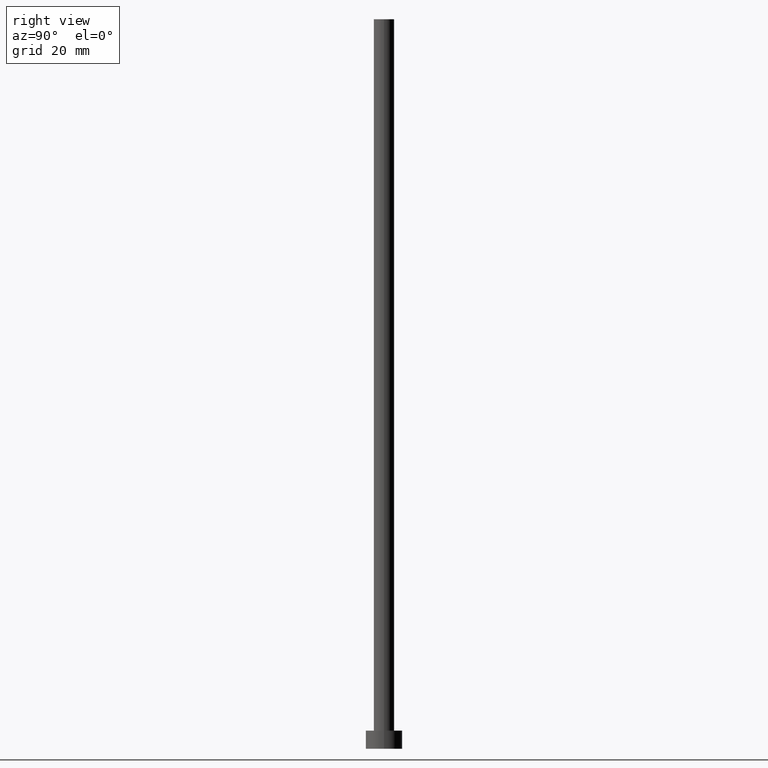
[diagram: clean part render]
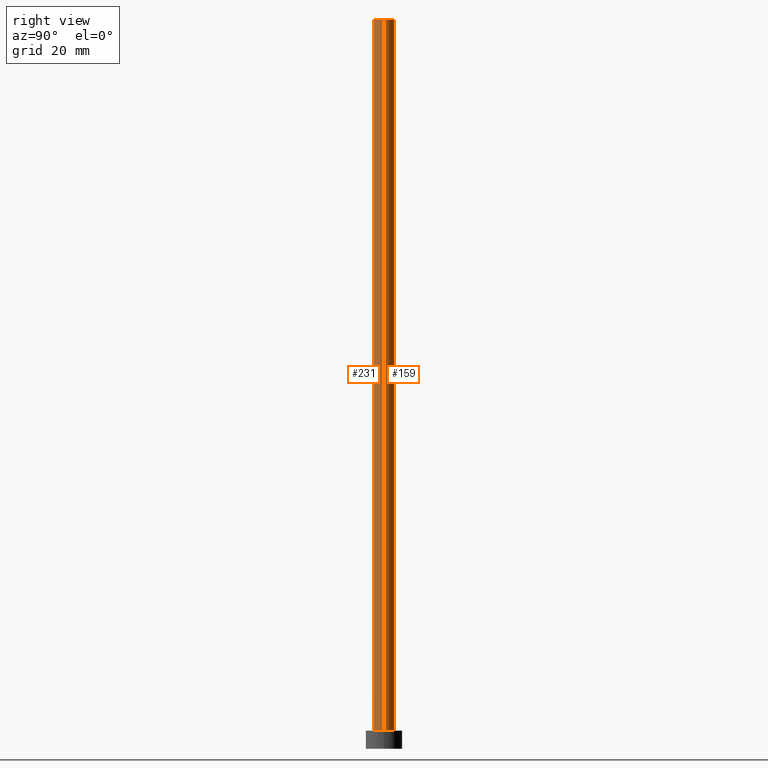
[diagram: same view with one multi-face feature highlighted, each face labeled with its STEP entity id]
A machine part, right view. The highlighted faces form ONE feature: a constant-radius fillet chain: 2 tangent blend faces with common blend radius 2.25 mm. The faces share edges in the B-rep.
Their STEP definitions:
[1] entity #159 (Cylinder):
#1 = CARTESIAN_POINT ( 'NONE',  ( 2.250000000000000000, 2.755455298081544285E-16, 160.0000000000000000 ) ) ;
#2 = VECTOR ( 'NONE', #218, 1000.000000000000000 ) ;
#4 = VERTEX_POINT ( 'NONE', #1 ) ;
#6 = ORIENTED_EDGE ( 'NONE', *, *, #172, .F. ) ;
#7 = DIRECTION ( 'NONE',  ( 0.000000000000000000, 0.000000000000000000, 1.000000000000000000 ) ) ;
#11 = VECTOR ( 'NONE', #240, 1000.000000000000000 ) ;
#24 = EDGE_CURVE ( 'NONE', #4, #242, #166, .T. ) ;
#25 = VERTEX_POINT ( 'NONE', #59 ) ;
#33 = LINE ( 'NONE', #216, #2 ) ;
#37 = CARTESIAN_POINT ( 'NONE',  ( 0.000000000000000000, 0.000000000000000000, 4.000000000000000000 ) ) ;
#42 = CARTESIAN_POINT ( 'NONE',  ( 2.250000000000000000, 2.755455298081544285E-16, 160.0000000000000000 ) ) ;
#44 = ORIENTED_EDGE ( 'NONE', *, *, #153, .F. ) ;
#47 = DIRECTION ( 'NONE',  ( 1.000000000000000000, 0.000000000000000000, 0.000000000000000000 ) ) ;
#59 = CARTESIAN_POINT ( 'NONE',  ( -2.250000000000000000, 0.000000000000000000, 160.0000000000000000 ) ) ;
#68 = DIRECTION ( 'NONE',  ( -0.000000000000000000, -0.000000000000000000, -1.000000000000000000 ) ) ;
#78 = EDGE_LOOP ( 'NONE', ( #6, #184, #169, #44 ) ) ;
#88 = CYLINDRICAL_SURFACE ( 'NONE', #224, 2.250000000000000000 ) ;
#101 = CARTESIAN_POINT ( 'NONE',  ( 2.250000000000000000, 2.755455298081544285E-16, 4.000000000000000000 ) ) ;
#103 = AXIS2_PLACEMENT_3D ( 'NONE', #37, #119, #202 ) ;
#109 = VERTEX_POINT ( 'NONE', #154 ) ;
#116 = FACE_OUTER_BOUND ( 'NONE', #78, .T. ) ;
#117 = CIRCLE ( 'NONE', #103, 2.250000000000000000 ) ;
#119 = DIRECTION ( 'NONE',  ( 0.000000000000000000, 0.000000000000000000, 1.000000000000000000 ) ) ;
#144 = AXIS2_PLACEMENT_3D ( 'NONE', #250, #7, #47 ) ;
#153 = EDGE_CURVE ( 'NONE', #25, #109, #33, .T. ) ;
#154 = CARTESIAN_POINT ( 'NONE',  ( -2.250000000000000000, 0.000000000000000000, 4.000000000000000000 ) ) ;
#157 = DIRECTION ( 'NONE',  ( -1.000000000000000000, 0.000000000000000000, 0.000000000000000000 ) ) ;
#159 = ADVANCED_FACE ( 'NONE', ( #116 ), #88, .T. ) ;
#166 = LINE ( 'NONE', #42, #11 ) ;
#169 = ORIENTED_EDGE ( 'NONE', *, *, #238, .T. ) ;
#172 = EDGE_CURVE ( 'NONE', #4, #25, #251, .T. ) ;
#175 = CARTESIAN_POINT ( 'NONE',  ( 0.000000000000000000, 0.000000000000000000, 160.0000000000000000 ) ) ;
#184 = ORIENTED_EDGE ( 'NONE', *, *, #24, .T. ) ;
#202 = DIRECTION ( 'NONE',  ( 1.000000000000000000, 0.000000000000000000, 0.000000000000000000 ) ) ;
#216 = CARTESIAN_POINT ( 'NONE',  ( -2.250000000000000000, 0.000000000000000000, 160.0000000000000000 ) ) ;
#218 = DIRECTION ( 'NONE',  ( -0.000000000000000000, -0.000000000000000000, -1.000000000000000000 ) ) ;
#224 = AXIS2_PLACEMENT_3D ( 'NONE', #175, #68, #157 ) ;
#238 = EDGE_CURVE ( 'NONE', #242, #109, #117, .T. ) ;
#240 = DIRECTION ( 'NONE',  ( -0.000000000000000000, -0.000000000000000000, -1.000000000000000000 ) ) ;
#242 = VERTEX_POINT ( 'NONE', #101 ) ;
#250 = CARTESIAN_POINT ( 'NONE',  ( 0.000000000000000000, 0.000000000000000000, 160.0000000000000000 ) ) ;
#251 = CIRCLE ( 'NONE', #144, 2.250000000000000000 ) ;
[2] entity #231 (Cylinder):
#1 = CARTESIAN_POINT ( 'NONE',  ( 2.250000000000000000, 2.755455298081544285E-16, 160.0000000000000000 ) ) ;
#2 = VECTOR ( 'NONE', #218, 1000.000000000000000 ) ;
#4 = VERTEX_POINT ( 'NONE', #1 ) ;
#5 = AXIS2_PLACEMENT_3D ( 'NONE', #94, #140, #223 ) ;
#11 = VECTOR ( 'NONE', #240, 1000.000000000000000 ) ;
#14 = AXIS2_PLACEMENT_3D ( 'NONE', #82, #127, #211 ) ;
#16 = FACE_OUTER_BOUND ( 'NONE', #106, .T. ) ;
#24 = EDGE_CURVE ( 'NONE', #4, #242, #166, .T. ) ;
#25 = VERTEX_POINT ( 'NONE', #59 ) ;
#29 = CIRCLE ( 'NONE', #14, 2.250000000000000000 ) ;
#33 = LINE ( 'NONE', #216, #2 ) ;
#34 = EDGE_CURVE ( 'NONE', #109, #242, #134, .T. ) ;
#42 = CARTESIAN_POINT ( 'NONE',  ( 2.250000000000000000, 2.755455298081544285E-16, 160.0000000000000000 ) ) ;
#59 = CARTESIAN_POINT ( 'NONE',  ( -2.250000000000000000, 0.000000000000000000, 160.0000000000000000 ) ) ;
#82 = CARTESIAN_POINT ( 'NONE',  ( 0.000000000000000000, 0.000000000000000000, 160.0000000000000000 ) ) ;
#86 = DIRECTION ( 'NONE',  ( 1.000000000000000000, 0.000000000000000000, 0.000000000000000000 ) ) ;
#94 = CARTESIAN_POINT ( 'NONE',  ( 0.000000000000000000, 0.000000000000000000, 160.0000000000000000 ) ) ;
#101 = CARTESIAN_POINT ( 'NONE',  ( 2.250000000000000000, 2.755455298081544285E-16, 4.000000000000000000 ) ) ;
#106 = EDGE_LOOP ( 'NONE', ( #205, #239, #229, #230 ) ) ;
#109 = VERTEX_POINT ( 'NONE', #154 ) ;
#123 = CARTESIAN_POINT ( 'NONE',  ( 0.000000000000000000, 0.000000000000000000, 4.000000000000000000 ) ) ;
#127 = DIRECTION ( 'NONE',  ( 0.000000000000000000, 0.000000000000000000, 1.000000000000000000 ) ) ;
#128 = AXIS2_PLACEMENT_3D ( 'NONE', #123, #171, #86 ) ;
#134 = CIRCLE ( 'NONE', #128, 2.250000000000000000 ) ;
#140 = DIRECTION ( 'NONE',  ( -0.000000000000000000, -0.000000000000000000, -1.000000000000000000 ) ) ;
#153 = EDGE_CURVE ( 'NONE', #25, #109, #33, .T. ) ;
#154 = CARTESIAN_POINT ( 'NONE',  ( -2.250000000000000000, 0.000000000000000000, 4.000000000000000000 ) ) ;
#166 = LINE ( 'NONE', #42, #11 ) ;
#171 = DIRECTION ( 'NONE',  ( 0.000000000000000000, 0.000000000000000000, 1.000000000000000000 ) ) ;
#181 = EDGE_CURVE ( 'NONE', #25, #4, #29, .T. ) ;
#205 = ORIENTED_EDGE ( 'NONE', *, *, #24, .F. ) ;
#211 = DIRECTION ( 'NONE',  ( 1.000000000000000000, 0.000000000000000000, 0.000000000000000000 ) ) ;
#216 = CARTESIAN_POINT ( 'NONE',  ( -2.250000000000000000, 0.000000000000000000, 160.0000000000000000 ) ) ;
#218 = DIRECTION ( 'NONE',  ( -0.000000000000000000, -0.000000000000000000, -1.000000000000000000 ) ) ;
#223 = DIRECTION ( 'NONE',  ( -1.000000000000000000, 0.000000000000000000, 0.000000000000000000 ) ) ;
#229 = ORIENTED_EDGE ( 'NONE', *, *, #153, .T. ) ;
#230 = ORIENTED_EDGE ( 'NONE', *, *, #34, .T. ) ;
#231 = ADVANCED_FACE ( 'NONE', ( #16 ), #254, .T. ) ;
#239 = ORIENTED_EDGE ( 'NONE', *, *, #181, .F. ) ;
#240 = DIRECTION ( 'NONE',  ( -0.000000000000000000, -0.000000000000000000, -1.000000000000000000 ) ) ;
#242 = VERTEX_POINT ( 'NONE', #101 ) ;
#254 = CYLINDRICAL_SURFACE ( 'NONE', #5, 2.250000000000000000 ) ;